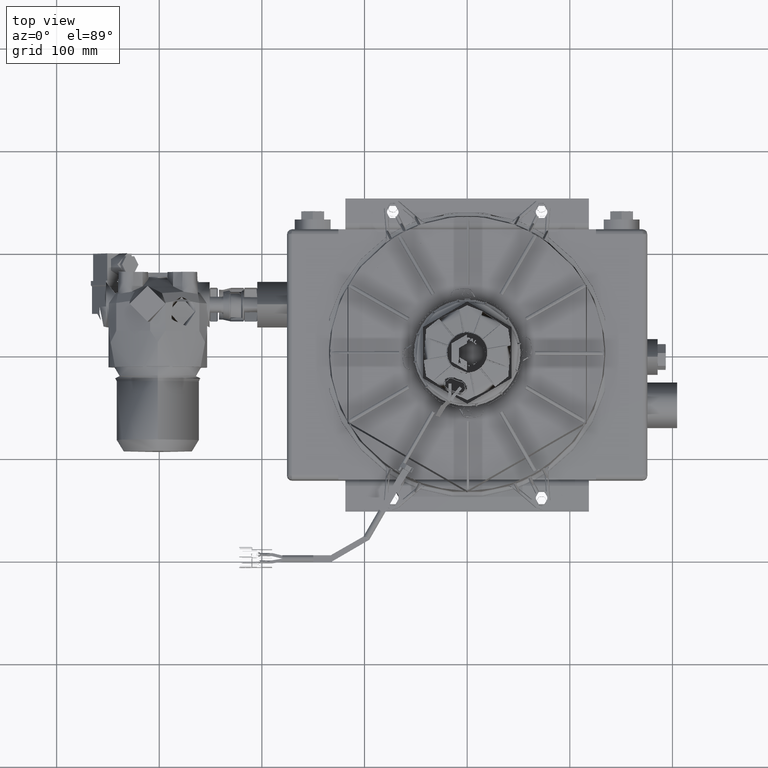
[diagram: clean part render]
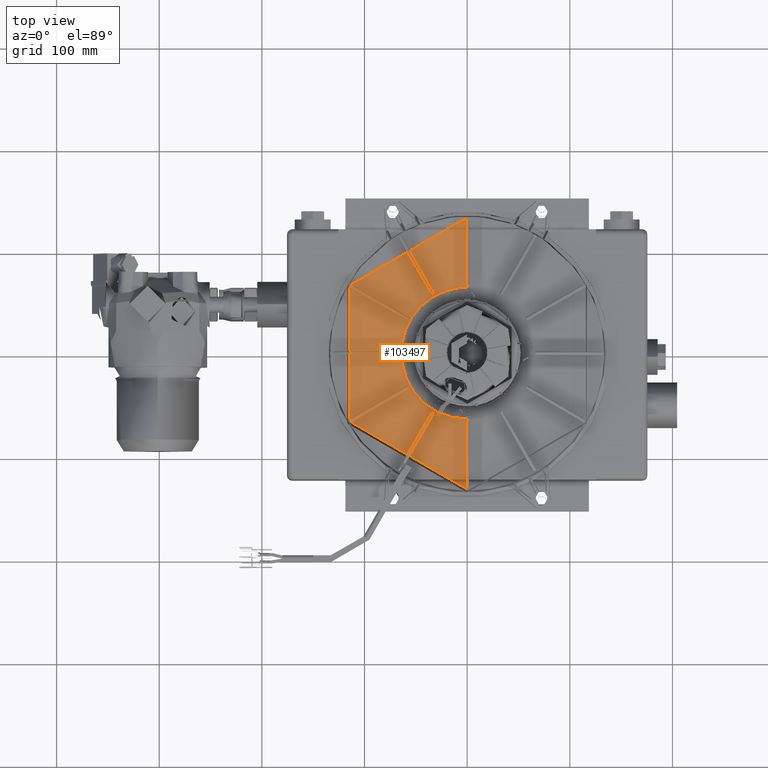
[diagram: same view with one face highlighted and labeled with its STEP entity id]
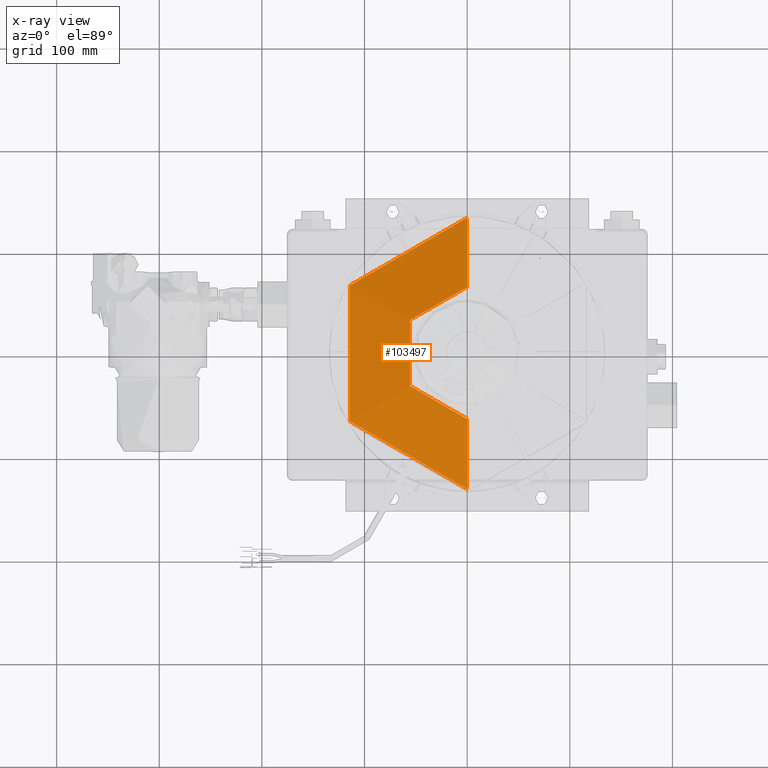
[diagram: x-ray of the same camera — body ghosted, the highlighted face saturated]
A machine part, top view. The second image highlights one B-rep face of the part: STEP entity #103497.
The next image is the same camera in x-ray: the body ghosted, the highlighted face saturated — about 0% of this face is hidden behind the body in this view.
In plain terms, the highlighted face is a freeform B-spline surface patch.
Its self-contained STEP definition (entity closure, byte-faithful):
#12805 =( BOUNDED_SURFACE ( )  B_SPLINE_SURFACE ( 3, 3, ( 
 ( #160945, #83483, #107664, #119379 ),
 ( #20065, #135157, #148497, #55998 ),
 ( #74288, #50045, #85126, #111812 ),
 ( #24996, #139226, #75920, #87610 ),
 ( #48400, #101704, #161778, #113446 ),
 ( #138412, #164259, #23367, #125912 ),
 ( #100901, #24203, #36737, #60955 ) ),
 .UNSPECIFIED., .F., .F., .T. ) 
 B_SPLINE_SURFACE_WITH_KNOTS ( ( 4, 1, 1, 1, 4 ),
 ( 4, 4 ),
 ( 0.009708735858346001502, 0.3219106654979000393, 0.6377048778834000231, 0.9499483539892003003, 0.9805825242330000746 ),
 ( 0.0000000000000000000, 1.000000000000000000 ),
 .UNSPECIFIED. ) 
 GEOMETRIC_REPRESENTATION_ITEM ( )  RATIONAL_B_SPLINE_SURFACE ( (
 ( 1.000000000000000000, 0.3333333333332645365, 0.3333333333332645365, 1.000000000000000000),
 ( 1.000000000000000000, 0.3333333333332645365, 0.3333333333332645365, 1.000000000000000000),
 ( 1.000000000000000000, 0.3333333333332645365, 0.3333333333332645365, 1.000000000000000000),
 ( 1.000000000000000000, 0.3333333333332645365, 0.3333333333332645365, 1.000000000000000000),
 ( 1.000000000000000000, 0.3333333333332645365, 0.3333333333332645365, 1.000000000000000000),
 ( 1.000000000000000000, 0.3333333333332645365, 0.3333333333332645365, 1.000000000000000000),
 ( 1.000000000000000000, 0.3333333333332645365, 0.3333333333332645365, 1.000000000000000000) ) ) 
 REPRESENTATION_ITEM ( '' )  SURFACE ( )  );
#20065 = CARTESIAN_POINT ( 'NONE',  ( 1.228234689205401498E-14, 4.916868701003516584, 3.578109345609496561 ) ) ;
#20098 = CARTESIAN_POINT ( 'NONE',  ( 2.611831910489898184E-13, -1.448295103254814611E-28, 4.187007874015717945 ) ) ;
#21440 = CARTESIAN_POINT ( 'NONE',  ( 5.859096643753394981E-13, -2.873782344220078944, 4.099548859559687841 ) ) ;
#23367 = CARTESIAN_POINT ( 'NONE',  ( -5.118415286247304685, -2.559207643124428611, 4.179834784079863752 ) ) ;
#24203 = CARTESIAN_POINT ( 'NONE',  ( -5.062204359847034318, 2.531102179923010453, 4.187007874015717057 ) ) ;
#24996 = CARTESIAN_POINT ( 'NONE',  ( 8.688259713976849524E-15, 3.478083840921260439, 3.945318362993309957 ) ) ;
#31813 = CARTESIAN_POINT ( 'NONE',  ( 8.688259713976849524E-15, 3.478083840921260439, 3.945318362993309957 ) ) ;
#32647 = CARTESIAN_POINT ( 'NONE',  ( 6.392905312932600708E-15, 2.559207643123385889, 4.179834784079863752 ) ) ;
#33477 = CARTESIAN_POINT ( 'NONE',  ( 7.178713484207383736E-15, 2.873782344220078944, 4.099548859559687841 ) ) ;
#34303 = DIRECTION ( 'NONE',  ( 5.473822126268816683E-48, 1.022492934526063007E-32, 1.000000000000000000 ) ) ;
#35778 = VERTEX_POINT ( 'NONE', #95410 ) ;
#36159 = ORIENTED_EDGE ( 'NONE', *, *, #45988, .T. ) ;
#36737 = CARTESIAN_POINT ( 'NONE',  ( -5.062204359846524504, -2.531102179924029638, 4.187007874015717057 ) ) ;
#41079 = CARTESIAN_POINT ( 'NONE',  ( 1.299785212705101073E-14, 5.203299733215152933, 3.505005891784220839 ) ) ;
#44734 = AXIS2_PLACEMENT_3D ( 'NONE', #45416, #124520, #61208 ) ;
#45416 = CARTESIAN_POINT ( 'NONE',  ( 5.369259443910855697E-13, -2.979044605645281271E-28, 3.505005891784220839 ) ) ;
#45988 = EDGE_CURVE ( 'NONE', #35778, #74891, #53670, .T. ) ;
#47441 = CIRCLE ( 'NONE', #44734, 5.203299733215152933 ) ;
#48400 = CARTESIAN_POINT ( 'NONE',  ( 7.178713484207383736E-15, 2.873782344220078944, 4.099548859559687841 ) ) ;
#49791 = CARTESIAN_POINT ( 'NONE',  ( 5.217738546779778919E-13, -2.559207643123385889, 4.179834784079863752 ) ) ;
#50045 = CARTESIAN_POINT ( 'NONE',  ( -8.681421743710449945, 4.340710871854355446, 3.725157366259451486 ) ) ;
#52234 = B_SPLINE_CURVE_WITH_KNOTS ( 'NONE', 3,
 ( #62349, #49791, #21440, #122395, #72382, #148244, #136509 ),
 .UNSPECIFIED., .F., .F.,
 ( 4, 1, 1, 1, 4 ),
 ( 0.009708735858346001502, 0.04034290610214577577, 0.3525863822079460252, 0.6683805945934460091, 0.9805825242330000746 ),
 .UNSPECIFIED. ) ;
#53670 = B_SPLINE_CURVE_WITH_KNOTS ( 'NONE', 3,
 ( #41079, #142760, #79419, #31813, #33477, #32647, #144390 ),
 .UNSPECIFIED., .F., .F.,
 ( 4, 1, 1, 1, 4 ),
 ( 0.009708735858346001502, 0.3219106654979000393, 0.6377048778834000231, 0.9499483539892003003, 0.9805825242330000746 ),
 .UNSPECIFIED. ) ;
#55998 = CARTESIAN_POINT ( 'NONE',  ( 1.002456186766092051E-12, -4.916868701003516584, 3.578109345609496561 ) ) ;
#56989 = VERTEX_POINT ( 'NONE', #100819 ) ;
#59282 = FACE_OUTER_BOUND ( 'NONE', #63183, .T. ) ;
#59542 = EDGE_CURVE ( 'NONE', #74891, #56989, #64100, .T. ) ;
#60955 = CARTESIAN_POINT ( 'NONE',  ( 5.160436842828633653E-13, -2.531102179922997575, 4.187007874015717945 ) ) ;
#61208 = DIRECTION ( 'NONE',  ( 1.000000000000000000, -5.551115123125782702E-16, 0.0000000000000000000 ) ) ;
#62349 = CARTESIAN_POINT ( 'NONE',  ( 5.160436842828633653E-13, -2.531102179922997575, 4.187007874015717945 ) ) ;
#63183 = EDGE_LOOP ( 'NONE', ( #36159, #68239, #144666, #110167 ) ) ;
#64100 = CIRCLE ( 'NONE', #106703, 2.531102179922997575 ) ;
#68239 = ORIENTED_EDGE ( 'NONE', *, *, #59542, .T. ) ;
#71038 = DIRECTION ( 'NONE',  ( 5.551115123125735370E-16, 1.000000000000000000, 0.0000000000000000000 ) ) ;
#72382 = CARTESIAN_POINT ( 'NONE',  ( 8.849885431280916638E-13, -4.340710871854334130, 3.725157366259451930 ) ) ;
#74288 = CARTESIAN_POINT ( 'NONE',  ( 1.084310359464020524E-14, 4.340710871854334130, 3.725157366259451930 ) ) ;
#74891 = VERTEX_POINT ( 'NONE', #123242 ) ;
#75920 = CARTESIAN_POINT ( 'NONE',  ( -6.956167681843248296, -3.478083840922678860, 3.945318362993309513 ) ) ;
#79419 = CARTESIAN_POINT ( 'NONE',  ( 1.084310359464020524E-14, 4.340710871854334130, 3.725157366259451930 ) ) ;
#83483 = CARTESIAN_POINT ( 'NONE',  ( -10.40659946643243927, 5.203299733215178691, 3.505005891784220839 ) ) ;
#85126 = CARTESIAN_POINT ( 'NONE',  ( -8.681421743709572425, -4.340710871856102493, 3.725157366259451486 ) ) ;
#87610 = CARTESIAN_POINT ( 'NONE',  ( 7.091152675504800762E-13, -3.478083840921260439, 3.945318362993309957 ) ) ;
#95410 = CARTESIAN_POINT ( 'NONE',  ( 1.299785212705101073E-14, 5.203299733215152933, 3.505005891784220839 ) ) ;
#100819 = CARTESIAN_POINT ( 'NONE',  ( 5.160436842828633653E-13, -2.531102179922997575, 4.187007874015717945 ) ) ;
#100901 = CARTESIAN_POINT ( 'NONE',  ( 6.322697815116244541E-15, 2.531102179922997575, 4.187007874015717945 ) ) ;
#101704 = CARTESIAN_POINT ( 'NONE',  ( -5.747564688441337388, 2.873782344220093155, 4.099548859559687841 ) ) ;
#103497 = ADVANCED_FACE ( 'NONE', ( #59282 ), #12805, .T. ) ;
#106703 = AXIS2_PLACEMENT_3D ( 'NONE', #20098, #34303, #71038 ) ;
#107664 = CARTESIAN_POINT ( 'NONE',  ( -10.40659946643139477, -5.203299733217275680, 3.505005891784220839 ) ) ;
#110167 = ORIENTED_EDGE ( 'NONE', *, *, #115886, .T. ) ;
#111812 = CARTESIAN_POINT ( 'NONE',  ( 8.849885431280916638E-13, -4.340710871854334130, 3.725157366259451930 ) ) ;
#113446 = CARTESIAN_POINT ( 'NONE',  ( 5.859096643753394981E-13, -2.873782344220078944, 4.099548859559687841 ) ) ;
#115886 = EDGE_CURVE ( 'NONE', #139186, #35778, #47441, .T. ) ;
#119379 = CARTESIAN_POINT ( 'NONE',  ( 1.060854036654527888E-12, -5.203299733215152933, 3.505005891784220839 ) ) ;
#122395 = CARTESIAN_POINT ( 'NONE',  ( 7.091152675504800762E-13, -3.478083840921260439, 3.945318362993309957 ) ) ;
#123242 = CARTESIAN_POINT ( 'NONE',  ( 6.322697815116244541E-15, 2.531102179922997575, 4.187007874015717945 ) ) ;
#124520 = DIRECTION ( 'NONE',  ( -1.312555557882340367E-17, -1.328807272747368630E-30, -1.000000000000000000 ) ) ;
#125912 = CARTESIAN_POINT ( 'NONE',  ( 5.217738546779778919E-13, -2.559207643123385889, 4.179834784079863752 ) ) ;
#127069 = EDGE_CURVE ( 'NONE', #56989, #139186, #52234, .T. ) ;
#135157 = CARTESIAN_POINT ( 'NONE',  ( -9.833737402009049333, 4.916868701003541453, 3.578109345609495673 ) ) ;
#136509 = CARTESIAN_POINT ( 'NONE',  ( 1.060854036654527888E-12, -5.203299733215152933, 3.505005891784220839 ) ) ;
#138412 = CARTESIAN_POINT ( 'NONE',  ( 6.392905312932600708E-15, 2.559207643123385889, 4.179834784079863752 ) ) ;
#139186 = VERTEX_POINT ( 'NONE', #145515 ) ;
#139226 = CARTESIAN_POINT ( 'NONE',  ( -6.956167681843949069, 3.478083840921277758, 3.945318362993309513 ) ) ;
#142760 = CARTESIAN_POINT ( 'NONE',  ( 1.228234689205401498E-14, 4.916868701003516584, 3.578109345609496561 ) ) ;
#144390 = CARTESIAN_POINT ( 'NONE',  ( 6.322697815116244541E-15, 2.531102179922997575, 4.187007874015717945 ) ) ;
#144666 = ORIENTED_EDGE ( 'NONE', *, *, #127069, .T. ) ;
#145515 = CARTESIAN_POINT ( 'NONE',  ( 1.060854036654527888E-12, -5.203299733215152933, 3.505005891784220839 ) ) ;
#148244 = CARTESIAN_POINT ( 'NONE',  ( 1.002456186766092051E-12, -4.916868701003516584, 3.578109345609496561 ) ) ;
#148497 = CARTESIAN_POINT ( 'NONE',  ( -9.833737402008063455, -4.916868701005521203, 3.578109345609495673 ) ) ;
#160945 = CARTESIAN_POINT ( 'NONE',  ( 1.299785212764315655E-14, 5.203299733215152933, 3.505005891784220839 ) ) ;
#161778 = CARTESIAN_POINT ( 'NONE',  ( -5.747564688440758296, -2.873782344221250895, 4.099548859559687841 ) ) ;
#164259 = CARTESIAN_POINT ( 'NONE',  ( -5.118415286247821605, 2.559207643123398324, 4.179834784079863752 ) ) ;